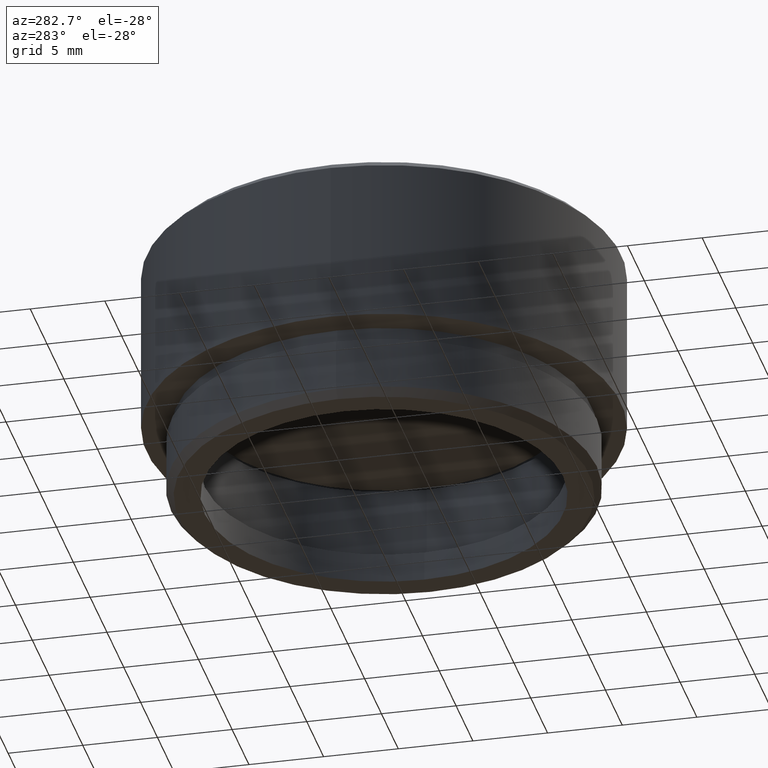
[diagram: clean part render]
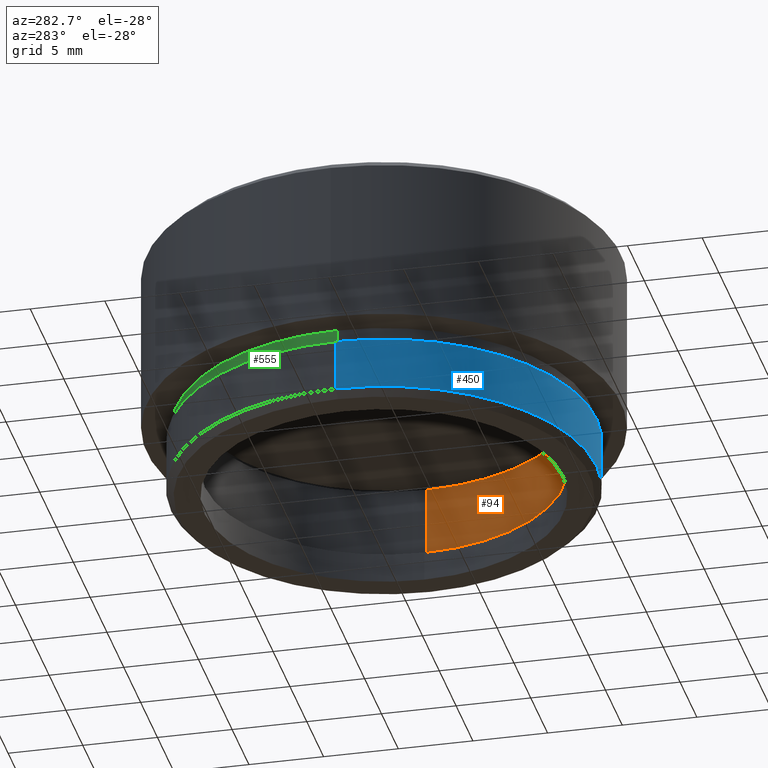
[diagram: same view with three faces highlighted in distinct colors, each labeled with its STEP entity id]
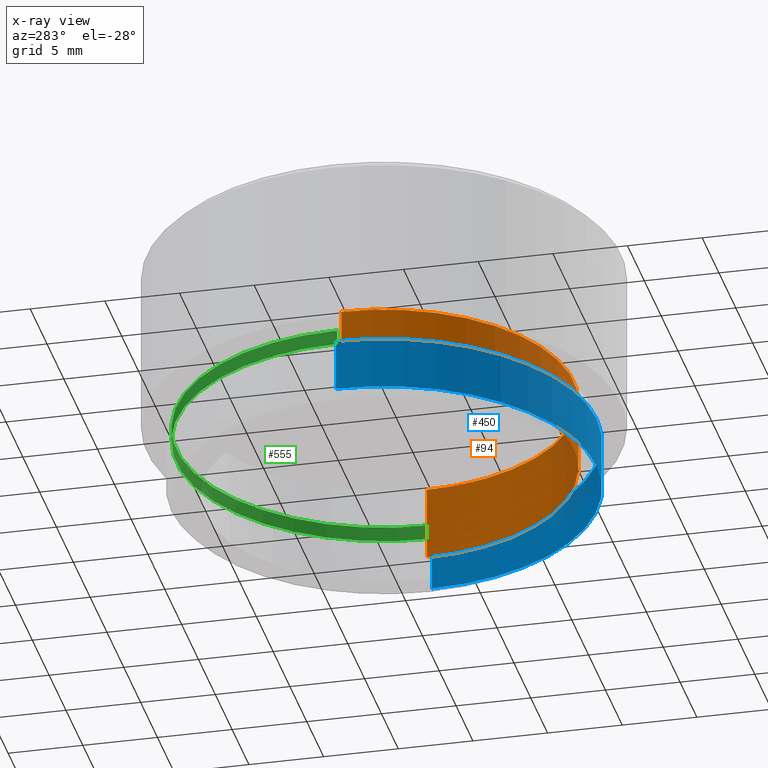
[diagram: x-ray of the same camera — body ghosted, the three highlighted faces saturated]
A machine part, auxiliary view with three faces highlighted in distinct colors.
The next image is the same camera in x-ray (body ghosted, the three faces saturated) — at least one of them is partly hidden behind the body in this view.
Their STEP definitions:

[orange] entity #94 — the highlighted cylindrical surface (partial cylindrical patch) has radius 12.7 mm, axis along (0, 0, 1).
#30 = LINE ( 'NONE', #799, #1398 ) ;
#36 = CARTESIAN_POINT ( 'NONE',  ( 12.69999999999999929, 0.000000000000000000, 7.000000000000000888 ) ) ;
#84 = EDGE_CURVE ( 'NONE', #1671, #772, #30, .T. ) ;
#94 = ADVANCED_FACE ( 'NONE', ( #1591 ), #830, .F. ) ;
#102 = AXIS2_PLACEMENT_3D ( 'NONE', #877, #1404, #726 ) ;
#252 = VECTOR ( 'NONE', #794, 1000.000000000000000 ) ;
#255 = EDGE_CURVE ( 'NONE', #1671, #629, #1369, .T. ) ;
#401 = EDGE_CURVE ( 'NONE', #772, #892, #1699, .T. ) ;
#483 = ORIENTED_EDGE ( 'NONE', *, *, #653, .F. ) ;
#509 = CARTESIAN_POINT ( 'NONE',  ( -12.69999999999999929, 1.555301434917138433E-15, 2.000000000000000888 ) ) ;
#522 = CARTESIAN_POINT ( 'NONE',  ( -12.69999999999999929, 1.555301434917138433E-15, 7.000000000000000888 ) ) ;
#556 = CARTESIAN_POINT ( 'NONE',  ( 0.000000000000000000, 0.000000000000000000, 7.000000000000000888 ) ) ;
#629 = VERTEX_POINT ( 'NONE', #1672 ) ;
#653 = EDGE_CURVE ( 'NONE', #629, #892, #1178, .T. ) ;
#706 = AXIS2_PLACEMENT_3D ( 'NONE', #941, #1355, #1323 ) ;
#726 = DIRECTION ( 'NONE',  ( 1.000000000000000000, 0.000000000000000000, 0.000000000000000000 ) ) ;
#772 = VERTEX_POINT ( 'NONE', #522 ) ;
#794 = DIRECTION ( 'NONE',  ( -0.000000000000000000, -0.000000000000000000, 1.000000000000000000 ) ) ;
#799 = CARTESIAN_POINT ( 'NONE',  ( -12.69999999999999929, 1.555301434917138433E-15, 2.000000000000000888 ) ) ;
#830 = CYLINDRICAL_SURFACE ( 'NONE', #706, 12.69999999999999929 ) ;
#868 = ORIENTED_EDGE ( 'NONE', *, *, #84, .T. ) ;
#877 = CARTESIAN_POINT ( 'NONE',  ( 0.000000000000000000, 0.000000000000000000, 2.000000000000000888 ) ) ;
#889 = EDGE_LOOP ( 'NONE', ( #1694, #868, #1633, #483 ) ) ;
#892 = VERTEX_POINT ( 'NONE', #36 ) ;
#941 = CARTESIAN_POINT ( 'NONE',  ( 0.000000000000000000, 0.000000000000000000, 2.000000000000000888 ) ) ;
#953 = DIRECTION ( 'NONE',  ( 1.000000000000000000, 0.000000000000000000, 0.000000000000000000 ) ) ;
#1095 = DIRECTION ( 'NONE',  ( -0.000000000000000000, -0.000000000000000000, 1.000000000000000000 ) ) ;
#1178 = LINE ( 'NONE', #1297, #252 ) ;
#1210 = DIRECTION ( 'NONE',  ( 0.000000000000000000, 0.000000000000000000, 1.000000000000000000 ) ) ;
#1297 = CARTESIAN_POINT ( 'NONE',  ( 12.69999999999999929, 0.000000000000000000, 2.000000000000000888 ) ) ;
#1323 = DIRECTION ( 'NONE',  ( 1.000000000000000000, 0.000000000000000000, 0.000000000000000000 ) ) ;
#1355 = DIRECTION ( 'NONE',  ( -0.000000000000000000, -0.000000000000000000, 1.000000000000000000 ) ) ;
#1369 = CIRCLE ( 'NONE', #102, 12.69999999999999929 ) ;
#1398 = VECTOR ( 'NONE', #1095, 1000.000000000000000 ) ;
#1404 = DIRECTION ( 'NONE',  ( 0.000000000000000000, 0.000000000000000000, 1.000000000000000000 ) ) ;
#1456 = AXIS2_PLACEMENT_3D ( 'NONE', #556, #1210, #953 ) ;
#1591 = FACE_OUTER_BOUND ( 'NONE', #889, .T. ) ;
#1633 = ORIENTED_EDGE ( 'NONE', *, *, #401, .T. ) ;
#1671 = VERTEX_POINT ( 'NONE', #509 ) ;
#1672 = CARTESIAN_POINT ( 'NONE',  ( 12.69999999999999929, 0.000000000000000000, 2.000000000000000888 ) ) ;
#1694 = ORIENTED_EDGE ( 'NONE', *, *, #255, .F. ) ;
#1699 = CIRCLE ( 'NONE', #1456, 12.69999999999999929 ) ;

[blue] entity #450 — the highlighted cylindrical surface (partial cylindrical patch) has radius 14.25 mm, axis along (-0, -0, -1).
#11 = CYLINDRICAL_SURFACE ( 'NONE', #181, 14.25000000000000000 ) ;
#41 = DIRECTION ( 'NONE',  ( -1.000000000000000000, 0.000000000000000000, 0.000000000000000000 ) ) ;
#61 = ORIENTED_EDGE ( 'NONE', *, *, #227, .F. ) ;
#168 = FACE_OUTER_BOUND ( 'NONE', #693, .T. ) ;
#181 = AXIS2_PLACEMENT_3D ( 'NONE', #1203, #688, #41 ) ;
#227 = EDGE_CURVE ( 'NONE', #314, #1549, #1508, .T. ) ;
#242 = EDGE_CURVE ( 'NONE', #314, #398, #1582, .T. ) ;
#313 = CARTESIAN_POINT ( 'NONE',  ( 0.000000000000000000, 0.000000000000000000, 4.000000000000000000 ) ) ;
#314 = VERTEX_POINT ( 'NONE', #1013 ) ;
#398 = VERTEX_POINT ( 'NONE', #1105 ) ;
#432 = EDGE_CURVE ( 'NONE', #775, #1549, #1047, .T. ) ;
#444 = ORIENTED_EDGE ( 'NONE', *, *, #432, .T. ) ;
#450 = ADVANCED_FACE ( 'NONE', ( #168 ), #11, .T. ) ;
#488 = VECTOR ( 'NONE', #1241, 1000.000000000000000 ) ;
#510 = VECTOR ( 'NONE', #1529, 1000.000000000000000 ) ;
#570 = AXIS2_PLACEMENT_3D ( 'NONE', #943, #1463, #674 ) ;
#674 = DIRECTION ( 'NONE',  ( 1.000000000000000000, 0.000000000000000000, 0.000000000000000000 ) ) ;
#688 = DIRECTION ( 'NONE',  ( -0.000000000000000000, -0.000000000000000000, -1.000000000000000000 ) ) ;
#693 = EDGE_LOOP ( 'NONE', ( #61, #1119, #1262, #444 ) ) ;
#705 = CARTESIAN_POINT ( 'NONE',  ( 14.25000000000000000, 1.745121688784978228E-15, 5.000000000000000000 ) ) ;
#775 = VERTEX_POINT ( 'NONE', #1461 ) ;
#847 = AXIS2_PLACEMENT_3D ( 'NONE', #313, #856, #1384 ) ;
#856 = DIRECTION ( 'NONE',  ( 0.000000000000000000, 0.000000000000000000, -1.000000000000000000 ) ) ;
#910 = CARTESIAN_POINT ( 'NONE',  ( 14.25000000000000000, 1.745121688784978228E-15, 0.4999999999999970024 ) ) ;
#943 = CARTESIAN_POINT ( 'NONE',  ( 0.000000000000000000, 0.000000000000000000, 0.4999999999999970024 ) ) ;
#1013 = CARTESIAN_POINT ( 'NONE',  ( 14.25000000000000000, 1.745121688784978228E-15, 4.000000000000000000 ) ) ;
#1047 = CIRCLE ( 'NONE', #570, 14.25000000000000000 ) ;
#1105 = CARTESIAN_POINT ( 'NONE',  ( -14.25000000000000000, 0.000000000000000000, 4.000000000000000000 ) ) ;
#1119 = ORIENTED_EDGE ( 'NONE', *, *, #242, .T. ) ;
#1203 = CARTESIAN_POINT ( 'NONE',  ( 0.000000000000000000, 0.000000000000000000, 5.000000000000000000 ) ) ;
#1241 = DIRECTION ( 'NONE',  ( -0.000000000000000000, -0.000000000000000000, -1.000000000000000000 ) ) ;
#1262 = ORIENTED_EDGE ( 'NONE', *, *, #1561, .T. ) ;
#1384 = DIRECTION ( 'NONE',  ( -1.000000000000000000, 0.000000000000000000, 0.000000000000000000 ) ) ;
#1461 = CARTESIAN_POINT ( 'NONE',  ( -14.25000000000000000, 0.000000000000000000, 0.4999999999999970024 ) ) ;
#1463 = DIRECTION ( 'NONE',  ( 0.000000000000000000, 0.000000000000000000, 1.000000000000000000 ) ) ;
#1508 = LINE ( 'NONE', #705, #488 ) ;
#1529 = DIRECTION ( 'NONE',  ( -0.000000000000000000, -0.000000000000000000, -1.000000000000000000 ) ) ;
#1549 = VERTEX_POINT ( 'NONE', #910 ) ;
#1561 = EDGE_CURVE ( 'NONE', #398, #775, #1677, .T. ) ;
#1582 = CIRCLE ( 'NONE', #847, 14.25000000000000000 ) ;
#1646 = CARTESIAN_POINT ( 'NONE',  ( -14.25000000000000000, 0.000000000000000000, 5.000000000000000000 ) ) ;
#1677 = LINE ( 'NONE', #1646, #510 ) ;

[green] entity #555 — the highlighted cylindrical surface (partial cylindrical patch) has radius 13.9 mm, axis along (0, 0, 1).
#17 = VERTEX_POINT ( 'NONE', #1346 ) ;
#20 = CIRCLE ( 'NONE', #210, 13.90000000000000036 ) ;
#35 = EDGE_CURVE ( 'NONE', #423, #17, #20, .T. ) ;
#57 = DIRECTION ( 'NONE',  ( 0.000000000000000000, 0.000000000000000000, 1.000000000000000000 ) ) ;
#210 = AXIS2_PLACEMENT_3D ( 'NONE', #521, #285, #663 ) ;
#211 = DIRECTION ( 'NONE',  ( 0.000000000000000000, 0.000000000000000000, 1.000000000000000000 ) ) ;
#285 = DIRECTION ( 'NONE',  ( 0.000000000000000000, 0.000000000000000000, -1.000000000000000000 ) ) ;
#308 = FACE_OUTER_BOUND ( 'NONE', #1285, .T. ) ;
#392 = CIRCLE ( 'NONE', #1304, 13.90000000000000036 ) ;
#423 = VERTEX_POINT ( 'NONE', #666 ) ;
#439 = CYLINDRICAL_SURFACE ( 'NONE', #903, 13.90000000000000036 ) ;
#521 = CARTESIAN_POINT ( 'NONE',  ( 0.000000000000000000, 0.000000000000000000, 5.000000000000000000 ) ) ;
#523 = DIRECTION ( 'NONE',  ( 0.000000000000000000, 0.000000000000000000, 1.000000000000000000 ) ) ;
#527 = DIRECTION ( 'NONE',  ( -1.000000000000000000, 0.000000000000000000, 0.000000000000000000 ) ) ;
#555 = ADVANCED_FACE ( 'NONE', ( #308 ), #439, .T. ) ;
#663 = DIRECTION ( 'NONE',  ( -1.000000000000000000, 0.000000000000000000, 0.000000000000000000 ) ) ;
#666 = CARTESIAN_POINT ( 'NONE',  ( -13.90000000000000036, 1.702259050814821084E-15, 5.000000000000000000 ) ) ;
#747 = EDGE_CURVE ( 'NONE', #1509, #758, #392, .T. ) ;
#758 = VERTEX_POINT ( 'NONE', #1194 ) ;
#800 = DIRECTION ( 'NONE',  ( 0.000000000000000000, 0.000000000000000000, -1.000000000000000000 ) ) ;
#870 = LINE ( 'NONE', #1520, #1074 ) ;
#903 = AXIS2_PLACEMENT_3D ( 'NONE', #1518, #57, #1366 ) ;
#926 = CARTESIAN_POINT ( 'NONE',  ( -13.90000000000000036, 1.702259050814821084E-15, 4.000000000000000000 ) ) ;
#1003 = CARTESIAN_POINT ( 'NONE',  ( -13.90000000000000036, 1.702259050814821084E-15, 4.000000000000000000 ) ) ;
#1059 = ORIENTED_EDGE ( 'NONE', *, *, #35, .T. ) ;
#1074 = VECTOR ( 'NONE', #211, 1000.000000000000000 ) ;
#1081 = CARTESIAN_POINT ( 'NONE',  ( 0.000000000000000000, 0.000000000000000000, 4.000000000000000000 ) ) ;
#1194 = CARTESIAN_POINT ( 'NONE',  ( 13.90000000000000036, 0.000000000000000000, 4.000000000000000000 ) ) ;
#1196 = LINE ( 'NONE', #926, #1212 ) ;
#1212 = VECTOR ( 'NONE', #523, 1000.000000000000000 ) ;
#1285 = EDGE_LOOP ( 'NONE', ( #1289, #1704, #1059, #1523 ) ) ;
#1289 = ORIENTED_EDGE ( 'NONE', *, *, #747, .F. ) ;
#1304 = AXIS2_PLACEMENT_3D ( 'NONE', #1081, #800, #527 ) ;
#1325 = EDGE_CURVE ( 'NONE', #758, #17, #870, .T. ) ;
#1346 = CARTESIAN_POINT ( 'NONE',  ( 13.90000000000000036, 0.000000000000000000, 5.000000000000000000 ) ) ;
#1366 = DIRECTION ( 'NONE',  ( 1.000000000000000000, 0.000000000000000000, 0.000000000000000000 ) ) ;
#1509 = VERTEX_POINT ( 'NONE', #1003 ) ;
#1518 = CARTESIAN_POINT ( 'NONE',  ( 0.000000000000000000, 0.000000000000000000, 4.000000000000000000 ) ) ;
#1520 = CARTESIAN_POINT ( 'NONE',  ( 13.90000000000000036, 0.000000000000000000, 4.000000000000000000 ) ) ;
#1523 = ORIENTED_EDGE ( 'NONE', *, *, #1325, .F. ) ;
#1678 = EDGE_CURVE ( 'NONE', #1509, #423, #1196, .T. ) ;
#1704 = ORIENTED_EDGE ( 'NONE', *, *, #1678, .T. ) ;